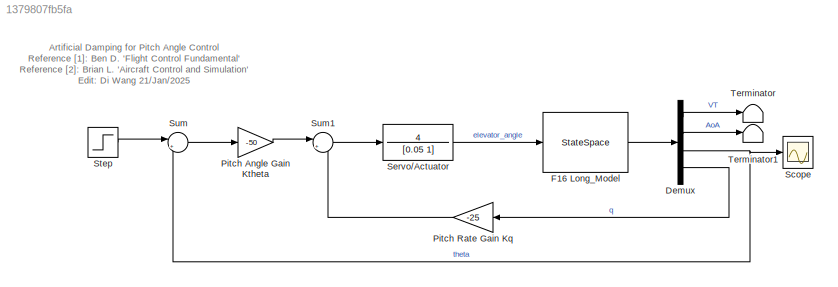
MODEL slx_1379807fb5fa
KIND model
CONFIG AbsTol = auto
CONFIG EnableMultiTasking = off
CONFIG FixedStep = auto
CONFIG MaxStep = auto
CONFIG MinStep = auto
CONFIG RelTol = 1e-3
CONFIG SampleTimeConstraint = Unconstrained
CONFIG Solver = VariableStepAuto
CONFIG SolverName = VariableStepAuto
CONFIG StartTime = 0.0
CONFIG StopTime = 100
BLOCK [Demux] Demux
  DisplayOption = bar
  Ports = [1, 4]
BLOCK [StateSpace] F16 Long_Model
  A = [-1.9311e-2 8.8157 -3.217e1 -5.7499e-1;\n     -2.5389e-4 -1.0189 0 9.0506e-1;\n     0 0 0 1;\n     2.9465e-12 8.2225e-1 0 -1.0744]
  B = [1.737e-1;\n     -2.1499e-3;\n     0;\n     -1.7555e-1]
  C = eye(4)
  D = zeros(4,1)
  InitialCondition = 0
  Ports = [1, 1]
BLOCK [Gain] Pitch Angle Gain Ktheta
  Gain = -50
  OutDataTypeStr = Inherit: Inherit via internal rule
  ParamDataTypeStr = Inherit: Inherit via internal rule
  SaturateOnIntegerOverflow = off
BLOCK [Gain] Pitch Rate Gain Kq
  Gain = -25
  OutDataTypeStr = Inherit: Inherit via internal rule
  ParamDataTypeStr = Inherit: Inherit via internal rule
  SaturateOnIntegerOverflow = off
BLOCK [Scope] Scope
  Floating = off
  NumInputPorts = 1
  Ports = [1]
  ScopeSpecificationString = Simulink.scopes.TimeScopeBlockCfg('CurrentConfiguration', extmgr.ConfigurationSet(extmgr.Configuration('Core','General UI',true),extmgr.Configuration('Core','Source UI',true),extmgr.Configuration('Sources','WiredSimulink',true),extmgr.Configuration('Visuals','Time Domain',true,'SerializedDisplays',{struct('MinYLimReal','-0.12596','MaxYLimReal','1.1336','YLabelReal','','MinYLimMag','0.00000','MaxYL...<+1363ch>
BLOCK [TransferFcn] Servo//Actuator
  Denominator = [0.05 1]
  Numerator = 4
BLOCK [Step] Step
  SampleTime = 0
BLOCK [Sum] Sum
  IconShape = round
  InputSameDT = off
  Inputs = |+-
  OutDataTypeStr = Inherit: Inherit via internal rule
  Ports = [2, 1]
  SaturateOnIntegerOverflow = off
BLOCK [Sum] Sum1
  IconShape = round
  InputSameDT = off
  Inputs = |+-
  OutDataTypeStr = Inherit: Inherit via internal rule
  Ports = [2, 1]
  SaturateOnIntegerOverflow = off
BLOCK [Terminator] Terminator
BLOCK [Terminator] Terminator1
ANNOTATION (root): Artificial Damping for Pitch Angle Control Reference [1]: Ben D. 'Flight Control Fundamental' Reference [2]: Brian L. 'Aircraft Control and Simulation' Edit: Di Wang 21/Jan/2025
LINE Demux:1 -> Terminator:1
LINE Demux:2 -> Terminator1:1
NET Demux:3 -> Scope:1, Sum:2
LINE Demux:4 -> Pitch Rate Gain Kq:1
LINE F16 Long_Model:1 -> Demux:1
LINE Pitch Angle Gain Ktheta:1 -> Sum1:1
LINE Pitch Rate Gain Kq:1 -> Sum1:2
LINE Servo//Actuator:1 -> F16 Long_Model:1
LINE Step:1 -> Sum:1
LINE Sum1:1 -> Servo//Actuator:1
LINE Sum:1 -> Pitch Angle Gain Ktheta:1
note: NET lines group one-source signal fan-out (src -> all destinations, sorted); 1:1 wires keep LINE
